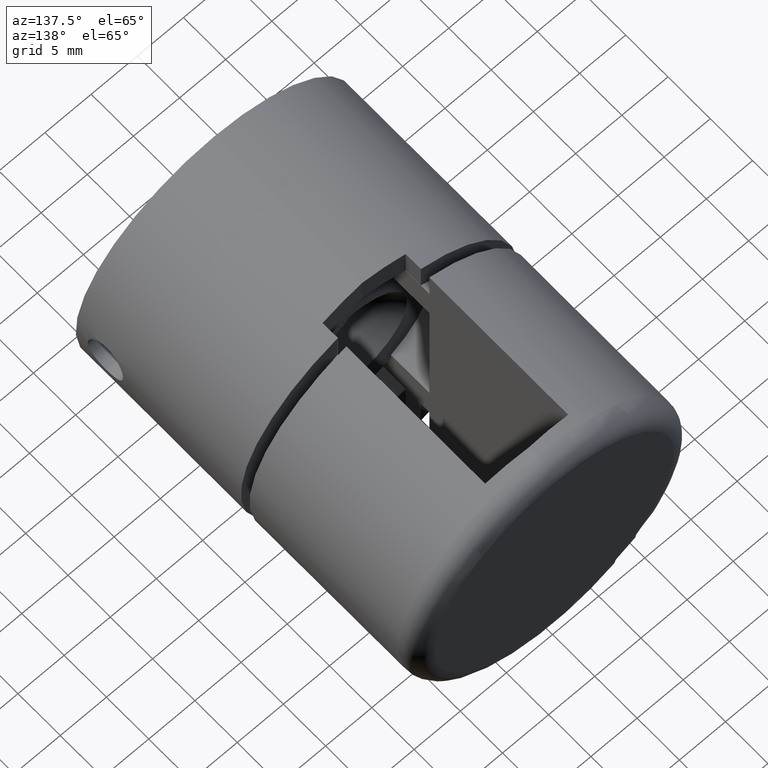
[diagram: clean part render]
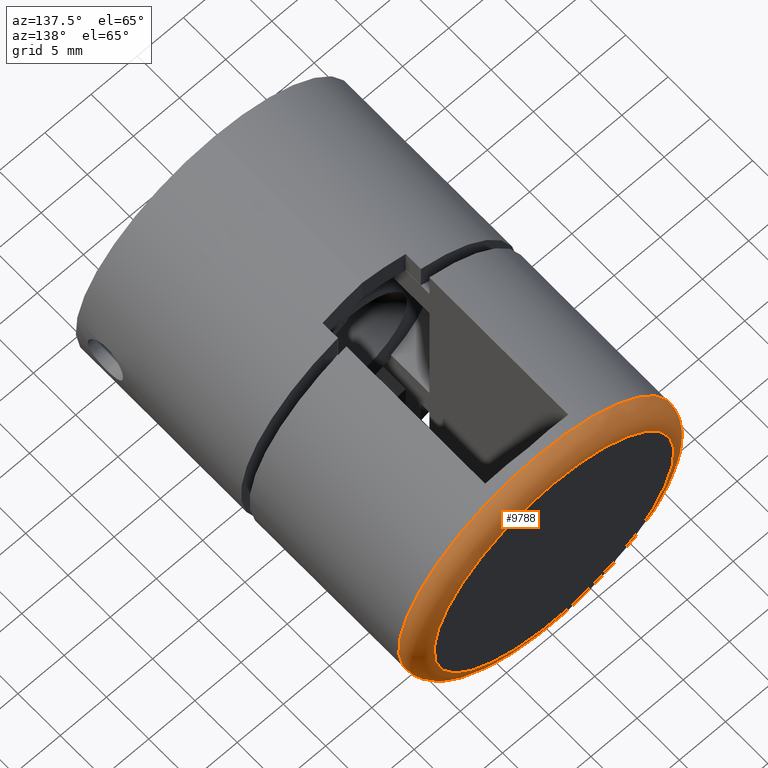
[diagram: same view with one face highlighted and labeled with its STEP entity id]
A machine part, auxiliary view. The second image highlights one B-rep face of the part: STEP entity #9788.
In plain terms, the highlighted toroidal blend (fillet) surface has major radius 13 mm and minor (blend) radius 2 mm.
Its self-contained STEP definition (entity closure, byte-faithful):
#279 = CARTESIAN_POINT ( 'NONE',  ( 0.0000000000000000000, 3.499999999999999600, -15.00000000000000000 ) ) ;
#295 = EDGE_CURVE ( 'NONE', #11407, #11407, #5388, .T. ) ;
#405 = ORIENTED_EDGE ( 'NONE', *, *, #295, .F. ) ;
#984 = AXIS2_PLACEMENT_3D ( 'NONE', #5190, #17226, #6707 ) ;
#1805 = EDGE_LOOP ( 'NONE', ( #16506 ) ) ;
#2590 = EDGE_LOOP ( 'NONE', ( #405 ) ) ;
#5005 = FACE_OUTER_BOUND ( 'NONE', #2590, .T. ) ;
#5190 = CARTESIAN_POINT ( 'NONE',  ( 0.0000000000000000000, 3.499999999999999600, 0.0000000000000000000 ) ) ;
#5388 = CIRCLE ( 'NONE', #984, 15.00000000000000000 ) ;
#5912 = AXIS2_PLACEMENT_3D ( 'NONE', #15823, #9266, #10593 ) ;
#6707 = DIRECTION ( 'NONE',  ( 0.0000000000000000000, 0.0000000000000000000, -1.000000000000000000 ) ) ;
#7646 = DIRECTION ( 'NONE',  ( 0.0000000000000000000, -1.000000000000000000, 0.0000000000000000000 ) ) ;
#7698 = DIRECTION ( 'NONE',  ( 0.0000000000000000000, 0.0000000000000000000, -1.000000000000000000 ) ) ;
#7717 = AXIS2_PLACEMENT_3D ( 'NONE', #15492, #7646, #7698 ) ;
#9266 = DIRECTION ( 'NONE',  ( 0.0000000000000000000, -1.000000000000000000, 0.0000000000000000000 ) ) ;
#9788 = ADVANCED_FACE ( 'NONE', ( #5005, #15875 ), #12722, .T. ) ;
#9868 = EDGE_CURVE ( 'NONE', #13273, #13273, #12282, .T. ) ;
#10593 = DIRECTION ( 'NONE',  ( 0.0000000000000000000, 0.0000000000000000000, -1.000000000000000000 ) ) ;
#10995 = CARTESIAN_POINT ( 'NONE',  ( 0.0000000000000000000, 1.500000000000000000, -13.00000000000000000 ) ) ;
#11407 = VERTEX_POINT ( 'NONE', #279 ) ;
#12282 = CIRCLE ( 'NONE', #5912, 13.00000000000000000 ) ;
#12722 = TOROIDAL_SURFACE ( 'NONE', #7717, 13.00000000000000000, 2.000000000000000000 ) ;
#13273 = VERTEX_POINT ( 'NONE', #10995 ) ;
#15492 = CARTESIAN_POINT ( 'NONE',  ( 0.0000000000000000000, 3.499999999999999600, 0.0000000000000000000 ) ) ;
#15823 = CARTESIAN_POINT ( 'NONE',  ( 0.0000000000000000000, 1.500000000000000000, 0.0000000000000000000 ) ) ;
#15875 = FACE_OUTER_BOUND ( 'NONE', #1805, .T. ) ;
#16506 = ORIENTED_EDGE ( 'NONE', *, *, #9868, .F. ) ;
#17226 = DIRECTION ( 'NONE',  ( -0.0000000000000000000, 1.000000000000000000, -0.0000000000000000000 ) ) ;